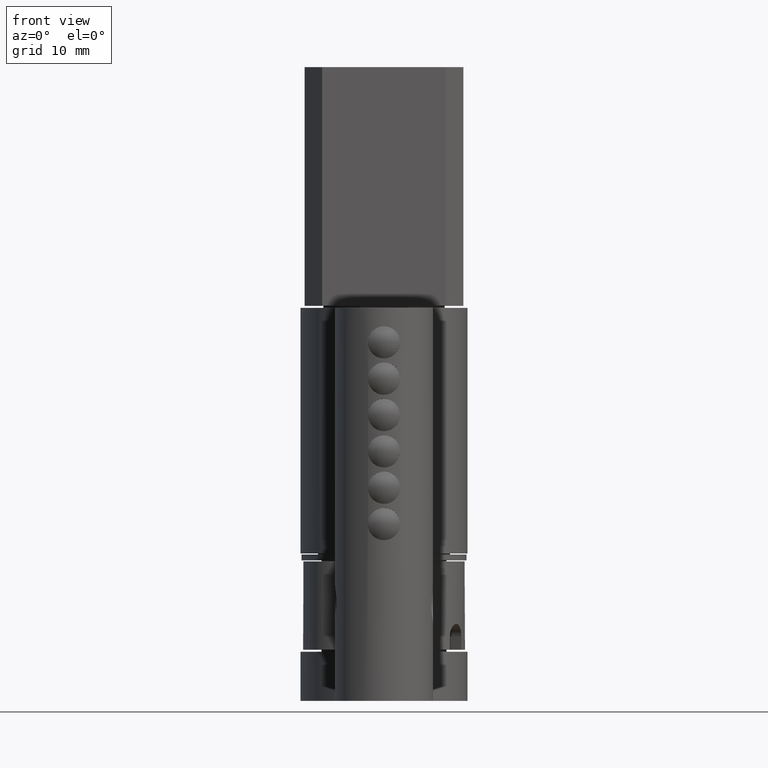
[diagram: clean part render]
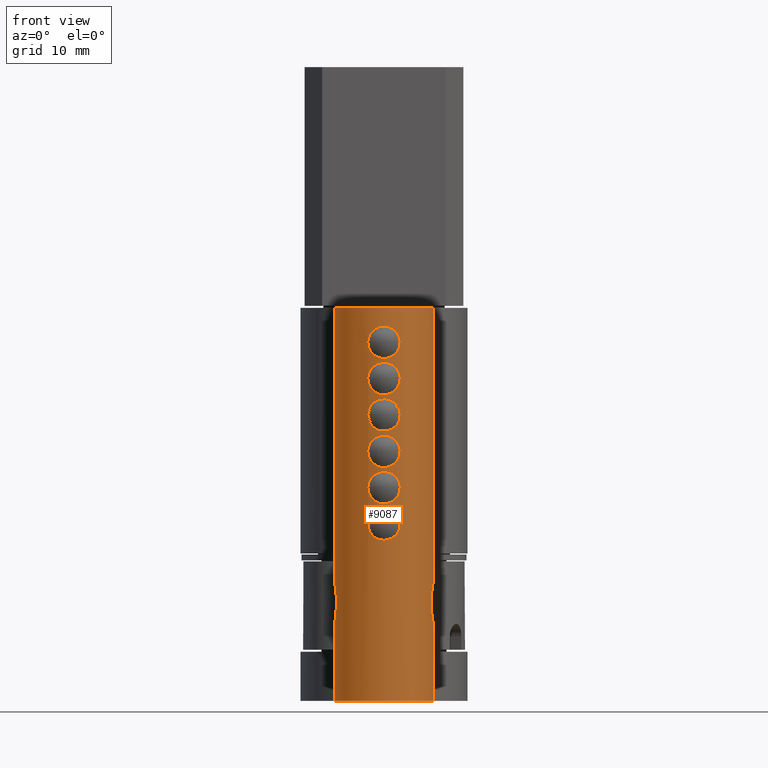
[diagram: same view with one face highlighted and labeled with its STEP entity id]
A machine part, front view. The second image highlights one B-rep face of the part: STEP entity #9087.
In plain terms, the highlighted cylindrical surface (partial cylindrical patch) has radius 5 mm, axis along (-0, -0, -1).
Its self-contained STEP definition (entity closure, byte-faithful):
#12 = CARTESIAN_POINT ( 'NONE',  ( 1.091621973882715500, 0.1200010070992013800, -3.241881492457313800 ) ) ;
#21 = EDGE_CURVE ( 'NONE', #3419, #1708, #11542, .T. ) ;
#35 = CARTESIAN_POINT ( 'NONE',  ( -1.007227762895522000, 0.1016609319739776000, 15.18869716826069400 ) ) ;
#57 = CARTESIAN_POINT ( 'NONE',  ( -0.1098355362201460500, -1.270549420881446700E-018, 7.449999999999996600 ) ) ;
#61 = CARTESIAN_POINT ( 'NONE',  ( 1.650074932156973200, 0.2801215349719762800, -1.892673292858079600 ) ) ;
#90 = CARTESIAN_POINT ( 'NONE',  ( -1.649988530627761700, 0.2800913304445955000, 16.60891810901854600 ) ) ;
#100 = CARTESIAN_POINT ( 'NONE',  ( 0.2182625013236346400, 0.003620420187726733500, 14.43912193469279600 ) ) ;
#106 = LINE ( 'NONE', #235, #13661 ) ;
#122 = CARTESIAN_POINT ( 'NONE',  ( 0.1088678505179345000, 1.447901440408486200E-005, -0.3500438758044245900 ) ) ;
#129 = VERTEX_POINT ( 'NONE', #2317 ) ;
#135 = CARTESIAN_POINT ( 'NONE',  ( 1.008203967324000400, 0.1018633726616975800, 10.41054823548679800 ) ) ;
#142 = CARTESIAN_POINT ( 'NONE',  ( 1.090686540736550900, 0.1197843866927484300, 2.942754997509563700 ) ) ;
#157 = CARTESIAN_POINT ( 'NONE',  ( -0.8288368090471287500, 0.06834075227554582700, 11.36924760114000500 ) ) ;
#160 = DIRECTION ( 'NONE',  ( -0.0000000000000000000, -0.0000000000000000000, -1.000000000000000000 ) ) ;
#186 = CARTESIAN_POINT ( 'NONE',  ( -1.090348691565175200, 0.1197049480819745000, 10.34307996601149100 ) ) ;
#193 = CARTESIAN_POINT ( 'NONE',  ( 0.1088678505179354900, 1.447901440407150400E-005, 3.349956124195575300 ) ) ;
#233 = CARTESIAN_POINT ( 'NONE',  ( 1.639256747681840700, 0.2762994924646670600, 8.882812243714482700 ) ) ;
#235 = CARTESIAN_POINT ( 'NONE',  ( -5.000000000000002700, 5.000000000000000000, 20.00000000000000000 ) ) ;
#237 = CARTESIAN_POINT ( 'NONE',  ( -5.000000000000002700, 5.000000000000000000, -20.00000000000000000 ) ) ;
#247 = CARTESIAN_POINT ( 'NONE',  ( 4.810345156952873700, 3.635557302054474200, -10.56187221587277100 ) ) ;
#277 = CARTESIAN_POINT ( 'NONE',  ( -1.596450199548909800, 0.2616615220276707300, 9.530705474130890300 ) ) ;
#285 = CARTESIAN_POINT ( 'NONE',  ( -0.8288368090471302000, 0.06834075227554585500, 0.2692476011400030100 ) ) ;
#342 = CARTESIAN_POINT ( 'NONE',  ( -1.564747389625166900, 0.2509528514736655800, 1.165543349862295800 ) ) ;
#354 = CARTESIAN_POINT ( 'NONE',  ( 4.875555561427368900, 3.889583975799378600, -8.806118562676722700 ) ) ;
#372 = CARTESIAN_POINT ( 'NONE',  ( -1.649988530627764000, 0.2800913304445966600, -1.891081890981457500 ) ) ;
#392 = CARTESIAN_POINT ( 'NONE',  ( 4.902649206668922200, 4.016070320915837000, -11.39244249719399300 ) ) ;
#407 = CARTESIAN_POINT ( 'NONE',  ( -1.565048404927423100, 0.2510481013306212800, -1.466218731627303200 ) ) ;
#531 = CARTESIAN_POINT ( 'NONE',  ( -0.7344766680267723600, 0.05321807587359096000, 3.918542652903086200 ) ) ;
#557 = B_SPLINE_CURVE_WITH_KNOTS ( 'NONE', 3,
 ( #10888, #5679, #13140, #5720, #8920, #11070, #1297, #3606, #392, #6678, #13196, #247, #6726, #8786, #8881, #7775, #7872, #3524, #12070, #6765, #354, #2498, #9945, #11028, #1793, #622, #3884, #7172 ),
 .UNSPECIFIED., .F., .F.,
 ( 4, 2, 2, 2, 2, 2, 2, 2, 2, 2, 2, 2, 2, 4 ),
 ( 0.0000000000000000000, 0.06250000000000019400, 0.1250000000000003900, 0.1875000000000005800, 0.2500000000000007800, 0.3750000000000014400, 0.4375000000000013300, 0.5000000000000012200, 0.6250000000000010000, 0.6875000000000008900, 0.7500000000000007800, 0.8750000000000001100, 0.9375000000000001100, 1.000000000000000000 ),
 .UNSPECIFIED. ) ;
#574 = CARTESIAN_POINT ( 'NONE',  ( 0.1088678505179366000, 1.447901440490442700E-005, 7.049956124195575500 ) ) ;
#586 = EDGE_CURVE ( 'NONE', #12808, #1708, #7542, .T. ) ;
#622 = CARTESIAN_POINT ( 'NONE',  ( 4.996420847617796000, 4.785816068972994100, -7.877367606260540000 ) ) ;
#630 = CARTESIAN_POINT ( 'NONE',  ( 0.5348553078930641200, 0.02767232543206412200, 3.835357254276535500 ) ) ;
#654 = ORIENTED_EDGE ( 'NONE', *, *, #21, .T. ) ;
#713 = CARTESIAN_POINT ( 'NONE',  ( 1.639176276003941400, 0.2762721595951963500, 5.617526304324264300 ) ) ;
#811 = CARTESIAN_POINT ( 'NONE',  ( 0.1098355362201435000, 0.0000000000000000000, 14.85000000000000300 ) ) ;
#885 = ORIENTED_EDGE ( 'NONE', *, *, #3923, .F. ) ;
#900 = CARTESIAN_POINT ( 'NONE',  ( 5.000000000000002700, 5.000000000000000000, -20.00000000000000000 ) ) ;
#912 = CARTESIAN_POINT ( 'NONE',  ( 1.565301919777040400, 0.2511317861460923800, 13.33305236176614500 ) ) ;
#958 = CARTESIAN_POINT ( 'NONE',  ( -2.710505431213761100E-015, 1.388192885777910200E-018, 11.15000000000000000 ) ) ;
#1030 = CARTESIAN_POINT ( 'NONE',  ( -2.974779710757102800E-015, -6.352747104407335400E-019, 7.449999999999998400 ) ) ;
#1039 = CARTESIAN_POINT ( 'NONE',  ( 5.000000000000002700, 5.000000000000000000, 20.00000000000000000 ) ) ;
#1049 = DIRECTION ( 'NONE',  ( 0.0000000000000000000, 0.0000000000000000000, 1.000000000000000000 ) ) ;
#1109 = CARTESIAN_POINT ( 'NONE',  ( -0.5350325930853473400, 0.02769193381224062700, 7.535419554168114200 ) ) ;
#1116 = CARTESIAN_POINT ( 'NONE',  ( 1.649924272086370300, 0.2800688667366772500, -2.109618429924121900 ) ) ;
#1147 = CARTESIAN_POINT ( 'NONE',  ( -0.1098355362201490100, 1.270549420881461900E-018, 11.15000000000000400 ) ) ;
#1166 = CARTESIAN_POINT ( 'NONE',  ( 1.564448142781998500, 0.2508549072477098100, -2.535278221980633800 ) ) ;
#1190 = DIRECTION ( 'NONE',  ( 0.0000000000000000000, 0.0000000000000000000, 1.000000000000000000 ) ) ;
#1200 = CARTESIAN_POINT ( 'NONE',  ( -0.8294594978670393200, 0.06844674825695269700, 14.23038720112003100 ) ) ;
#1212 = CARTESIAN_POINT ( 'NONE',  ( -2.974779710757102800E-015, -6.352747104407335400E-019, 7.449999999999998400 ) ) ;
#1216 = CARTESIAN_POINT ( 'NONE',  ( 1.565301919777036800, 0.2511317861460909400, -1.466947638233848700 ) ) ;
#1224 = CARTESIAN_POINT ( 'NONE',  ( -1.649988530627762900, 0.2800913304445953300, 9.208918109018547700 ) ) ;
#1228 = CARTESIAN_POINT ( 'NONE',  ( 0.2182625013236318700, 0.003620420187726417800, 3.339121934692796900 ) ) ;
#1232 = B_SPLINE_CURVE_WITH_KNOTS ( 'NONE', 3,
 ( #13433, #4955, #9116, #11403, #630, #12367, #7002, #2827, #4863, #10274, #8053, #3850, #5951, #12410, #12449, #1625, #713, #9213, #8093, #10197, #4823, #13535, #11360, #2866, #3805, #1712, #9172, #8188, #574, #3753, #8140, #6004, #2773, #10233, #11311, #4905, #13479, #1751, #3887, #6051, #6953, #1800, #1675, #7129, #9254, #10328, #3930, #5869, #13348, #2689, #531, #2727, #8018, #10152, #11222, #12316 ),
 .UNSPECIFIED., .T., .F.,
 ( 4, 2, 2, 2, 2, 2, 2, 2, 2, 2, 2, 2, 2, 2, 2, 2, 2, 2, 2, 2, 2, 2, 2, 2, 2, 2, 2, 4 ),
 ( 0.0000000000000000000, 0.0003246662408440515600, 0.0006493324816881031100, 0.0009739987225321547700, 0.001298664963376206200, 0.001947997445064311700, 0.002272663685908363400, 0.002597329926752415000, 0.002921996167596466700, 0.003246662408440517900, 0.003895994890128623400, 0.004220661130972677700, 0.004545327371816731100, 0.004869993612660784500, 0.005194659853504837900, 0.005843992335192946400, 0.006168658576036999800, 0.006493324816881053200, 0.007142657298569158300, 0.007467323539413209100, 0.007791989780257259900, 0.008116656021101313300, 0.008441322261945364100, 0.009090654743633465700, 0.009415320984477518200, 0.009739987225321570700, 0.01006465346616562300, 0.01038931970700967600 ),
 .UNSPECIFIED. ) ;
#1243 = CARTESIAN_POINT ( 'NONE',  ( 0.8299907424451421500, 0.06853642137993093400, 14.23007946797399000 ) ) ;
#1269 = EDGE_CURVE ( 'NONE', #1605, #3419, #2524, .T. ) ;
#1276 = CARTESIAN_POINT ( 'NONE',  ( -1.318936890373211700, 0.1745502042704533400, 10.11456284359348800 ) ) ;
#1297 = CARTESIAN_POINT ( 'NONE',  ( 4.941861884265828000, 4.235866886016523800, -11.66418053715917400 ) ) ;
#1300 = CARTESIAN_POINT ( 'NONE',  ( 0.1088678505179397800, 1.447901440493856700E-005, 14.44995612419557100 ) ) ;
#1329 = CARTESIAN_POINT ( 'NONE',  ( 1.090686540736553100, 0.1197843866927483200, 10.34275499750955700 ) ) ;
#1335 = DIRECTION ( 'NONE',  ( -0.0000000000000000000, -0.0000000000000000000, -1.000000000000000000 ) ) ;
#1338 = CARTESIAN_POINT ( 'NONE',  ( 0.8288422500476654300, 0.06833795511982887500, 0.2692321090903262400 ) ) ;
#1345 = CARTESIAN_POINT ( 'NONE',  ( -2.818925648462311500E-015, 0.0000000000000000000, -3.650000000000000400 ) ) ;
#1370 = CARTESIAN_POINT ( 'NONE',  ( -1.091479703988459600, 0.1199675293744176000, -3.242018534619019600 ) ) ;
#1384 = CARTESIAN_POINT ( 'NONE',  ( 1.650074932156973700, 0.2801215349719773400, 1.807326707141919200 ) ) ;
#1423 = CARTESIAN_POINT ( 'NONE',  ( 1.649924272086369600, 0.2800688667366781900, 1.590381570075876500 ) ) ;
#1455 = CARTESIAN_POINT ( 'NONE',  ( -1.639377002387362600, 0.2763416565669774000, -2.216232406311964300 ) ) ;
#1558 = ORIENTED_EDGE ( 'NONE', *, *, #5480, .T. ) ;
#1588 = EDGE_CURVE ( 'NONE', #12808, #13588, #557, .T. ) ;
#1605 = VERTEX_POINT ( 'NONE', #4901 ) ;
#1625 = CARTESIAN_POINT ( 'NONE',  ( 1.650074932156973700, 0.2801215349719775000, 5.507326707141917400 ) ) ;
#1675 = CARTESIAN_POINT ( 'NONE',  ( -1.639377002387362200, 0.2763416565669772300, 5.183767593688036100 ) ) ;
#1705 = CARTESIAN_POINT ( 'NONE',  ( -4.847990087421261600, 3.776395032320928100, -10.41328457518212900 ) ) ;
#1708 = VERTEX_POINT ( 'NONE', #900 ) ;
#1712 = CARTESIAN_POINT ( 'NONE',  ( 0.5347578009618484400, 0.02767013905915844500, 6.964644688810746900 ) ) ;
#1751 = CARTESIAN_POINT ( 'NONE',  ( -1.565048404927422000, 0.2510481013306209400, 5.933781268372698900 ) ) ;
#1793 = CARTESIAN_POINT ( 'NONE',  ( 4.983782024809693600, 4.585255775201479100, -8.017752466960672600 ) ) ;
#1800 = CARTESIAN_POINT ( 'NONE',  ( -1.650011451046699400, 0.2800993430409798900, 5.291429667541697400 ) ) ;
#1979 = CARTESIAN_POINT ( 'NONE',  ( 1.090686540736554700, 0.1197843866927495900, 14.04275499750956300 ) ) ;
#2019 = CARTESIAN_POINT ( 'NONE',  ( 1.007627981561622500, 0.1017395076262229300, 11.48898433117820900 ) ) ;
#2057 = B_SPLINE_CURVE_WITH_KNOTS ( 'NONE', 3,
 ( #8399, #811, #11571, #13747, #3039, #10506, #7349, #12621, #10416, #4018, #9478, #10547, #5219, #12579, #6187, #4155, #12715, #13577, #7176, #9306, #2905, #10373, #3980, #5039, #12542, #6142, #13614, #5410, #2101, #11754, #10734, #8636, #3183, #4292, #6422, #2198, #13880, #5362, #9525, #7480, #90, #12849, #2151, #6472, #4242, #11668, #4342, #9658, #35, #7533, #3276, #3229, #8544, #12896, #4197, #11805 ),
 .UNSPECIFIED., .T., .F.,
 ( 4, 2, 2, 2, 2, 2, 2, 2, 2, 2, 2, 2, 2, 2, 2, 2, 2, 2, 2, 2, 2, 2, 2, 2, 2, 2, 2, 4 ),
 ( 0.0000000000000000000, 0.0003246662408440538900, 0.0006493324816881077700, 0.0009739987225321616000, 0.001298664963376215500, 0.001947997445064319100, 0.002272663685908371200, 0.002597329926752422900, 0.002921996167596474500, 0.003246662408440526200, 0.003895994890128629500, 0.004220661130972678600, 0.004545327371816726800, 0.004869993612660775000, 0.005194659853504823100, 0.005843992335192918700, 0.006168658576036969500, 0.006493324816881020300, 0.007142657298569121000, 0.007467323539413171800, 0.007791989780257220800, 0.008116656021101271600, 0.008441322261945322400, 0.009090654743633432700, 0.009415320984477490400, 0.009739987225321548200, 0.01006465346616560400, 0.01038931970700966200 ),
 .UNSPECIFIED. ) ;
#2085 = CARTESIAN_POINT ( 'NONE',  ( 0.8288422500476647600, 0.06833795511982891600, 7.669232109090324400 ) ) ;
#2090 = CARTESIAN_POINT ( 'NONE',  ( 0.5348553078930635700, 0.02767232543206431300, 0.1353572542765338100 ) ) ;
#2101 = CARTESIAN_POINT ( 'NONE',  ( 0.1088678505179400700, 1.447901440490031200E-005, 18.14995612419556900 ) ) ;
#2126 = CARTESIAN_POINT ( 'NONE',  ( 1.639176276003940100, 0.2762721595951956900, -1.782473695675734500 ) ) ;
#2151 = CARTESIAN_POINT ( 'NONE',  ( -1.639377002387360400, 0.2763416565669761200, 16.28376759368804400 ) ) ;
#2177 = CARTESIAN_POINT ( 'NONE',  ( -0.7344766680267734700, 0.05321807587359116100, 7.618542652903088600 ) ) ;
#2198 = CARTESIAN_POINT ( 'NONE',  ( -1.318936890373207500, 0.1745502042704512900, 17.51456284359348500 ) ) ;
#2208 = CARTESIAN_POINT ( 'NONE',  ( -0.2157346272952234400, -2.882455228084988800E-005, 14.45008734713448100 ) ) ;
#2258 = CARTESIAN_POINT ( 'NONE',  ( -1.639377002387360800, 0.2763416565669767300, 12.58376759368803900 ) ) ;
#2289 = CARTESIAN_POINT ( 'NONE',  ( -1.639377002387362200, 0.2763416565669772900, 8.883767593688038000 ) ) ;
#2298 = CARTESIAN_POINT ( 'NONE',  ( -1.007707363604455100, 0.1017608875518722000, 3.010929621706361900 ) ) ;
#2313 = CARTESIAN_POINT ( 'NONE',  ( -1.650011451046699200, 0.2800993430409785000, 12.69142966754170300 ) ) ;
#2317 = CARTESIAN_POINT ( 'NONE',  ( -5.000000000000002700, 5.000000000000000000, -7.916749309423144300 ) ) ;
#2340 = CARTESIAN_POINT ( 'NONE',  ( -1.564747389625167600, 0.2509528514736654200, 8.565543349862300800 ) ) ;
#2347 = CARTESIAN_POINT ( 'NONE',  ( 1.565301919777038400, 0.2511317861460914400, 2.233052361766149300 ) ) ;
#2376 = CARTESIAN_POINT ( 'NONE',  ( -1.007227762895521700, 0.1016609319739767800, -3.311302831739314700 ) ) ;
#2380 = VERTEX_POINT ( 'NONE', #3175 ) ;
#2387 = CARTESIAN_POINT ( 'NONE',  ( -0.4342168362335594400, 0.01484655982269268900, 10.70638104697103700 ) ) ;
#2391 = CARTESIAN_POINT ( 'NONE',  ( 1.596555122176873200, 0.2616964099415495800, 1.269482929314563100 ) ) ;
#2430 = CARTESIAN_POINT ( 'NONE',  ( 1.091621973882715300, 0.1200010070992018300, 0.4581185075426857900 ) ) ;
#2443 = EDGE_CURVE ( 'NONE', #4793, #4793, #11510, .T. ) ;
#2469 = CARTESIAN_POINT ( 'NONE',  ( -1.440749348093746300, 0.2112867944481308900, -2.832498968664956900 ) ) ;
#2485 = CARTESIAN_POINT ( 'NONE',  ( -1.439823138735753200, 0.2109925964010945000, 2.534628742667457000 ) ) ;
#2498 = CARTESIAN_POINT ( 'NONE',  ( 4.915652671846959100, 4.076624709432105800, -8.512100751001304000 ) ) ;
#2524 = LINE ( 'NONE', #4774, #9862 ) ;
#2689 = CARTESIAN_POINT ( 'NONE',  ( -0.8288368090471295300, 0.06834075227554560500, 3.969247601140003700 ) ) ;
#2727 = CARTESIAN_POINT ( 'NONE',  ( -0.5350325930853457900, 0.02769193381224046400, 3.835419554168112600 ) ) ;
#2773 = CARTESIAN_POINT ( 'NONE',  ( -0.8294594978670446500, 0.06844674825695380700, 6.830387201120025500 ) ) ;
#2827 = CARTESIAN_POINT ( 'NONE',  ( 1.007627981561622900, 0.1017395076262231600, 4.088984331178210100 ) ) ;
#2857 = CARTESIAN_POINT ( 'NONE',  ( -5.000000000000005300, 4.615107718840552500, -8.138187031066985700 ) ) ;
#2866 = CARTESIAN_POINT ( 'NONE',  ( 0.8299907424451372600, 0.06853642137992990700, 6.830079467973993300 ) ) ;
#2905 = CARTESIAN_POINT ( 'NONE',  ( 1.318555841879641900, 0.1744620256502037200, 17.51491819757088200 ) ) ;
#2974 = CIRCLE ( 'NONE', #12867, 5.000000000000002700 ) ;
#3037 = AXIS2_PLACEMENT_3D ( 'NONE', #3435, #6542, #5430 ) ;
#3039 = CARTESIAN_POINT ( 'NONE',  ( 0.5348553078930639000, 0.02767232543206428800, 14.93535725427653600 ) ) ;
#3093 = CARTESIAN_POINT ( 'NONE',  ( 1.596710054480432000, 0.2617492071492583700, 13.22980642015704300 ) ) ;
#3144 = CARTESIAN_POINT ( 'NONE',  ( 1.639176276003941700, 0.2762721595951957400, 13.01752630432426000 ) ) ;
#3175 = CARTESIAN_POINT ( 'NONE',  ( -5.000000000000002700, 5.000000000000000000, 20.00000000000000000 ) ) ;
#3183 = CARTESIAN_POINT ( 'NONE',  ( -0.8294594978670387600, 0.06844674825695314100, 17.93038720112003000 ) ) ;
#3191 = CARTESIAN_POINT ( 'NONE',  ( 0.7343526686366274000, 0.05319912855572678200, 11.31847940271060800 ) ) ;
#3229 = CARTESIAN_POINT ( 'NONE',  ( -0.5350325930853470100, 0.02769193381224076600, 14.93541955416811200 ) ) ;
#3250 = CARTESIAN_POINT ( 'NONE',  ( 1.318555841879636800, 0.1744620256502012700, -0.9850818024291203600 ) ) ;
#3276 = CARTESIAN_POINT ( 'NONE',  ( -0.7344766680267729200, 0.05321807587359122400, 15.01854265290308600 ) ) ;
#3283 = CARTESIAN_POINT ( 'NONE',  ( -0.5350325930853452300, 0.02769193381224101200, 11.23541955416811800 ) ) ;
#3298 = EDGE_CURVE ( 'NONE', #2380, #9400, #2974, .T. ) ;
#3305 = CARTESIAN_POINT ( 'NONE',  ( 1.639256747681840300, 0.2762994924646665600, -2.217187756285512000 ) ) ;
#3343 = CARTESIAN_POINT ( 'NONE',  ( -1.318282798373261700, 0.1744109273760071900, 11.78492246516002100 ) ) ;
#3356 = CARTESIAN_POINT ( 'NONE',  ( 0.7334418086693814700, 0.05307234083726414900, -0.5180613976250497700 ) ) ;
#3366 = CARTESIAN_POINT ( 'NONE',  ( 0.7334418086693860200, 0.05307234083726531500, 10.58193860237495300 ) ) ;
#3370 = CARTESIAN_POINT ( 'NONE',  ( -1.650011451046700100, 0.2800993430409798900, 1.591429667541695200 ) ) ;
#3385 = CARTESIAN_POINT ( 'NONE',  ( 0.7334418086693866900, 0.05307234083726540500, 14.28193860237495400 ) ) ;
#3401 = CARTESIAN_POINT ( 'NONE',  ( 0.7343526686366284000, 0.05319912855572687300, -3.481520597289391000 ) ) ;
#3411 = CARTESIAN_POINT ( 'NONE',  ( 0.1088678505179384000, 1.447901440484535700E-005, 10.74995612419557600 ) ) ;
#3416 = CARTESIAN_POINT ( 'NONE',  ( 1.440119107417346500, 0.2110821048080516700, 2.534156243290182500 ) ) ;
#3419 = VERTEX_POINT ( 'NONE', #237 ) ;
#3435 = CARTESIAN_POINT ( 'NONE',  ( -2.818925648462311500E-015, 4.999999999999999100, 20.00000000000000000 ) ) ;
#3455 = CARTESIAN_POINT ( 'NONE',  ( 1.440119107417347400, 0.2110821048080524000, 9.934156243290187800 ) ) ;
#3462 = CARTESIAN_POINT ( 'NONE',  ( -0.2177597503544256900, 0.003614935792076520800, 0.06086415663724822900 ) ) ;
#3498 = CARTESIAN_POINT ( 'NONE',  ( -1.318936890373213300, 0.1745502042704537300, -0.9854371564065166300 ) ) ;
#3524 = CARTESIAN_POINT ( 'NONE',  ( 4.828009089172987900, 3.699443201864563300, -9.222393706855413600 ) ) ;
#3540 = CARTESIAN_POINT ( 'NONE',  ( -1.007707363604456200, 0.1017608875518726700, -0.6890703782936378200 ) ) ;
#3552 = CARTESIAN_POINT ( 'NONE',  ( 1.564448142781999600, 0.2508549072477102000, 1.164721778019364800 ) ) ;
#3606 = CARTESIAN_POINT ( 'NONE',  ( 4.916061798234333800, 4.084448420357166000, -11.48513290920858900 ) ) ;
#3753 = CARTESIAN_POINT ( 'NONE',  ( -0.2157346272952258000, -2.882455228068828400E-005, 7.050087347134478000 ) ) ;
#3793 = CARTESIAN_POINT ( 'NONE',  ( -4.840695979654275200, 3.747850073983687700, -10.20857877746924200 ) ) ;
#3805 = CARTESIAN_POINT ( 'NONE',  ( 0.7334418086693833500, 0.05307234083726435100, 6.881938602374948900 ) ) ;
#3850 = CARTESIAN_POINT ( 'NONE',  ( 1.564448142781999000, 0.2508549072477099200, 4.864721778019364800 ) ) ;
#3884 = CARTESIAN_POINT ( 'NONE',  ( 4.999999999999998200, 4.890697894200006800, -7.813490803979134600 ) ) ;
#3887 = CARTESIAN_POINT ( 'NONE',  ( -1.596450199548911100, 0.2616615220276712300, 5.830705474130883000 ) ) ;
#3923 = EDGE_CURVE ( 'NONE', #12663, #12663, #4037, .T. ) ;
#3930 = CARTESIAN_POINT ( 'NONE',  ( -1.318282798373263500, 0.1744109273760078000, 4.384922465160017600 ) ) ;
#3980 = CARTESIAN_POINT ( 'NONE',  ( 1.008203967324001300, 0.1018633726616976800, 17.81054823548679200 ) ) ;
#4018 = CARTESIAN_POINT ( 'NONE',  ( 1.318121357566448100, 0.1743735220147118700, 15.48477155900082600 ) ) ;
#4030 = ORIENTED_EDGE ( 'NONE', *, *, #3298, .F. ) ;
#4037 = B_SPLINE_CURVE_WITH_KNOTS ( 'NONE', 3,
 ( #12972, #6595, #8714, #4321, #5387, #3401, #6501, #6447, #12, #13029, #7713, #1166, #11933, #3305, #1116, #61, #2126, #7507, #1216, #7556, #3250, #10759, #4364, #11834, #3356, #5440, #12919, #6547, #122, #7602, #9722, #5648, #7931, #3540, #8859, #3498, #7793, #407, #12182, #4563, #372, #8941, #1455, #11091, #5738, #2469, #6745, #1370, #2376, #10949, #12130, #7889, #8897, #9969, #11990, #12045 ),
 .UNSPECIFIED., .T., .F.,
 ( 4, 2, 2, 2, 2, 2, 2, 2, 2, 2, 2, 2, 2, 2, 2, 2, 2, 2, 2, 2, 2, 2, 2, 2, 2, 2, 2, 4 ),
 ( 0.0000000000000000000, 0.0003246662408440523100, 0.0006493324816881046300, 0.0009739987225321570500, 0.001298664963376209000, 0.001947997445064313700, 0.002272663685908365500, 0.002597329926752418100, 0.002921996167596470600, 0.003246662408440522300, 0.003895994890128628200, 0.004220661130972680300, 0.004545327371816732800, 0.004869993612660785400, 0.005194659853504837900, 0.005843992335192943000, 0.006168658576036994600, 0.006493324816881047200, 0.007142657298569153100, 0.007467323539413205600, 0.007791989780257257300, 0.008116656021101309800, 0.008441322261945362300, 0.009090654743633469100, 0.009415320984477521700, 0.009739987225321574200, 0.01006465346616562800, 0.01038931970700968100 ),
 .UNSPECIFIED. ) ;
#4155 = CARTESIAN_POINT ( 'NONE',  ( 1.650074932156973900, 0.2801215349719775000, 16.60732670714190800 ) ) ;
#4182 = EDGE_CURVE ( 'NONE', #10473, #10473, #8573, .T. ) ;
#4197 = CARTESIAN_POINT ( 'NONE',  ( -0.1098355362201504200, 6.352747104407327700E-019, 14.85000000000000000 ) ) ;
#4242 = CARTESIAN_POINT ( 'NONE',  ( -1.564747389625165600, 0.2509528514736650300, 15.96554334986229800 ) ) ;
#4250 = CARTESIAN_POINT ( 'NONE',  ( 1.639256747681841200, 0.2762994924646670600, 12.58281224371448700 ) ) ;
#4292 = CARTESIAN_POINT ( 'NONE',  ( -1.007707363604451300, 0.1017608875518717800, 17.81092962170637200 ) ) ;
#4321 = CARTESIAN_POINT ( 'NONE',  ( 0.4296339622040287700, 0.01736092247163208800, -3.596744917678951700 ) ) ;
#4342 = CARTESIAN_POINT ( 'NONE',  ( -1.318282798373261200, 0.1744109273760077500, 15.48492246516002700 ) ) ;
#4349 = CARTESIAN_POINT ( 'NONE',  ( -0.2177597503544258000, 0.003614935792076432800, 11.16086415663725300 ) ) ;
#4364 = CARTESIAN_POINT ( 'NONE',  ( 1.008203967323997500, 0.1018633726616975800, -0.6894517645132017800 ) ) ;
#4423 = CARTESIAN_POINT ( 'NONE',  ( -0.2157346272952247500, -2.882455228083886700E-005, 10.75008734713448400 ) ) ;
#4428 = CARTESIAN_POINT ( 'NONE',  ( 1.318555841879637300, 0.1744620256502021300, 2.714918197570880900 ) ) ;
#4446 = CARTESIAN_POINT ( 'NONE',  ( -1.565048404927420700, 0.2510481013306207200, 13.33378126837269800 ) ) ;
#4464 = LINE ( 'NONE', #11818, #10144 ) ;
#4482 = CARTESIAN_POINT ( 'NONE',  ( -1.318282798373265500, 0.1744109273760088800, 8.084922465160021300 ) ) ;
#4492 = CARTESIAN_POINT ( 'NONE',  ( 1.639176276003941200, 0.2762721595951964100, 1.917526304324264500 ) ) ;
#4533 = CARTESIAN_POINT ( 'NONE',  ( 1.596555122176873700, 0.2616964099415500800, 8.669482929314563400 ) ) ;
#4539 = CARTESIAN_POINT ( 'NONE',  ( 1.007627981561623600, 0.1017395076262230500, 0.3889843311782110700 ) ) ;
#4563 = CARTESIAN_POINT ( 'NONE',  ( -1.638967601010439000, 0.2761996259038456700, -1.781035053206781800 ) ) ;
#4572 = CARTESIAN_POINT ( 'NONE',  ( 1.008203967323999100, 0.1018633726616971900, 3.010548235486796700 ) ) ;
#4617 = CARTESIAN_POINT ( 'NONE',  ( -0.7344766680267721400, 0.05321807587359100900, 0.2185426529030856100 ) ) ;
#4774 = CARTESIAN_POINT ( 'NONE',  ( -5.000000000000002700, 5.000000000000000000, 20.00000000000000000 ) ) ;
#4793 = VERTEX_POINT ( 'NONE', #6530 ) ;
#4812 = CARTESIAN_POINT ( 'NONE',  ( -4.873950748808798700, 3.882849423961722800, -10.81612768231493100 ) ) ;
#4823 = CARTESIAN_POINT ( 'NONE',  ( 1.318555841879637700, 0.1744620256502023000, 6.414918197570879800 ) ) ;
#4857 = CARTESIAN_POINT ( 'NONE',  ( -4.893485412084420900, 3.967441344839498300, -11.00978255570573900 ) ) ;
#4863 = CARTESIAN_POINT ( 'NONE',  ( 1.091621973882715500, 0.1200010070992013300, 4.158118507542682500 ) ) ;
#4897 = CARTESIAN_POINT ( 'NONE',  ( -5.000000000000002700, 5.000000000000000000, -7.916749309423144300 ) ) ;
#4901 = CARTESIAN_POINT ( 'NONE',  ( -5.000000000000002700, 5.000000000000000000, -12.08325069057685200 ) ) ;
#4905 = CARTESIAN_POINT ( 'NONE',  ( -1.318936890373211000, 0.1745502042704530400, 6.414562843593484900 ) ) ;
#4955 = CARTESIAN_POINT ( 'NONE',  ( 0.1098355362201438200, 0.0000000000000000000, 3.750000000000000900 ) ) ;
#5039 = CARTESIAN_POINT ( 'NONE',  ( 0.8299907424451388200, 0.06853642137993036500, 17.93007946797398600 ) ) ;
#5196 = EDGE_CURVE ( 'NONE', #5820, #5820, #7566, .T. ) ;
#5219 = CARTESIAN_POINT ( 'NONE',  ( 1.596555122176873000, 0.2616964099415497500, 16.06948292931457400 ) ) ;
#5313 = CARTESIAN_POINT ( 'NONE',  ( 0.7343526686366281800, 0.05319912855572684500, 0.2184794027106089800 ) ) ;
#5362 = CARTESIAN_POINT ( 'NONE',  ( -1.565048404927418900, 0.2510481013306202800, 17.03378126837269900 ) ) ;
#5387 = CARTESIAN_POINT ( 'NONE',  ( 0.5348553078930639000, 0.02767232543206432600, -3.564642745723465700 ) ) ;
#5403 = CARTESIAN_POINT ( 'NONE',  ( 0.1098355362201437100, 1.505836350674302700E-018, 0.04999999999999949600 ) ) ;
#5410 = CARTESIAN_POINT ( 'NONE',  ( 0.2182625013236349500, 0.003620420187726749600, 18.13912193469278500 ) ) ;
#5430 = DIRECTION ( 'NONE',  ( -1.000000000000000000, 0.0000000000000000000, 0.0000000000000000000 ) ) ;
#5440 = CARTESIAN_POINT ( 'NONE',  ( 0.5347578009618465500, 0.02767013905915829600, -0.4353553111892511900 ) ) ;
#5475 = CARTESIAN_POINT ( 'NONE',  ( -0.4342168362335595600, 0.01484655982269220300, 14.40638104697104700 ) ) ;
#5480 = EDGE_CURVE ( 'NONE', #129, #1605, #10038, .T. ) ;
#5510 = CARTESIAN_POINT ( 'NONE',  ( 1.007627981561622900, 0.1017395076262230800, 7.788984331178213900 ) ) ;
#5516 = CARTESIAN_POINT ( 'NONE',  ( -1.596450199548912000, 0.2616615220276719000, 2.130705474130883300 ) ) ;
#5530 = CARTESIAN_POINT ( 'NONE',  ( -1.649988530627762200, 0.2800913304445952200, 12.90891810901854200 ) ) ;
#5560 = CARTESIAN_POINT ( 'NONE',  ( 1.564448142781999800, 0.2508549072477094200, 8.564721778019363200 ) ) ;
#5563 = CARTESIAN_POINT ( 'NONE',  ( 1.318121357566449200, 0.1743735220147120100, 0.6847715590008398600 ) ) ;
#5606 = CARTESIAN_POINT ( 'NONE',  ( 1.565301919777039000, 0.2511317861460920500, 9.633052361766148800 ) ) ;
#5648 = CARTESIAN_POINT ( 'NONE',  ( -0.7329107949355439000, 0.05298913105984148800, -0.5177827929412183200 ) ) ;
#5679 = CARTESIAN_POINT ( 'NONE',  ( 5.000000000000000000, 4.891497751846060300, -12.18692257364965700 ) ) ;
#5720 = CARTESIAN_POINT ( 'NONE',  ( 4.984061707453753000, 4.589020082699136100, -11.98502555787702000 ) ) ;
#5738 = CARTESIAN_POINT ( 'NONE',  ( -1.564747389625168900, 0.2509528514736658100, -2.534456650137703700 ) ) ;
#5820 = VERTEX_POINT ( 'NONE', #11810 ) ;
#5843 = EDGE_CURVE ( 'NONE', #2380, #129, #106, .T. ) ;
#5869 = CARTESIAN_POINT ( 'NONE',  ( -1.091479703988457600, 0.1199675293744175600, 4.157981465380978600 ) ) ;
#5905 = CARTESIAN_POINT ( 'NONE',  ( -5.000000000000002700, 5.000000000000000000, -12.08325069057685200 ) ) ;
#5951 = CARTESIAN_POINT ( 'NONE',  ( 1.596555122176872800, 0.2616964099415504700, 4.969482929314558800 ) ) ;
#6004 = CARTESIAN_POINT ( 'NONE',  ( -0.7329107949355420100, 0.05298913105984112700, 6.882217207058784100 ) ) ;
#6051 = CARTESIAN_POINT ( 'NONE',  ( -1.638967601010437900, 0.2761996259038451100, 5.618964946793219000 ) ) ;
#6142 = CARTESIAN_POINT ( 'NONE',  ( 0.5347578009618508800, 0.02767013905915916700, 18.06464468881074500 ) ) ;
#6187 = CARTESIAN_POINT ( 'NONE',  ( 1.649924272086369800, 0.2800688667366781300, 16.39038157007588100 ) ) ;
#6261 = ORIENTED_EDGE ( 'NONE', *, *, #2443, .F. ) ;
#6280 = CARTESIAN_POINT ( 'NONE',  ( 0.1098355362201435800, 1.505836350674358600E-018, 11.14999999999999900 ) ) ;
#6289 = FACE_BOUND ( 'NONE', #12913, .T. ) ;
#6325 = ORIENTED_EDGE ( 'NONE', *, *, #1269, .T. ) ;
#6343 = ORIENTED_EDGE ( 'NONE', *, *, #8202, .F. ) ;
#6374 = CARTESIAN_POINT ( 'NONE',  ( -2.907017074976758800E-015, 1.176434648964268000E-019, 0.04999999999999971100 ) ) ;
#6422 = CARTESIAN_POINT ( 'NONE',  ( -1.090348691565173200, 0.1197049480819732700, 17.74307996601149300 ) ) ;
#6447 = CARTESIAN_POINT ( 'NONE',  ( 1.007627981561622900, 0.1017395076262230200, -3.311015668821788400 ) ) ;
#6467 = ORIENTED_EDGE ( 'NONE', *, *, #5843, .T. ) ;
#6472 = CARTESIAN_POINT ( 'NONE',  ( -1.596846945608434900, 0.2617951781563940300, 16.07058965802272600 ) ) ;
#6484 = CARTESIAN_POINT ( 'NONE',  ( 1.650074932156974500, 0.2801215349719781100, 12.90732670714191600 ) ) ;
#6501 = CARTESIAN_POINT ( 'NONE',  ( 0.8288422500476653200, 0.06833795511982888900, -3.430767890909674800 ) ) ;
#6513 = CARTESIAN_POINT ( 'NONE',  ( 0.2176880948222495400, 0.003612363740725702500, 7.460856453209375500 ) ) ;
#6523 = DIRECTION ( 'NONE',  ( 1.000000000000000000, 0.0000000000000000000, 0.0000000000000000000 ) ) ;
#6530 = CARTESIAN_POINT ( 'NONE',  ( -2.818925648462311500E-015, 0.0000000000000000000, 0.04999999999999969700 ) ) ;
#6537 = CARTESIAN_POINT ( 'NONE',  ( -1.318936890373209300, 0.1745502042704518700, 13.81456284359349100 ) ) ;
#6542 = DIRECTION ( 'NONE',  ( -0.0000000000000000000, -0.0000000000000000000, -1.000000000000000000 ) ) ;
#6544 = CARTESIAN_POINT ( 'NONE',  ( -0.4297570286535419300, 0.01737098360340318500, 7.503286338070026300 ) ) ;
#6547 = CARTESIAN_POINT ( 'NONE',  ( 0.2182625013236299500, 0.003620420187727173300, -0.3608780653072030700 ) ) ;
#6556 = CARTESIAN_POINT ( 'NONE',  ( 1.596710054480432200, 0.2617492071492587600, 9.529806420157051100 ) ) ;
#6560 = CARTESIAN_POINT ( 'NONE',  ( 1.596710054480430700, 0.2617492071492588700, 2.129806420157051200 ) ) ;
#6578 = CARTESIAN_POINT ( 'NONE',  ( -1.596450199548909800, 0.2616615220276705100, 13.23070547413088600 ) ) ;
#6595 = CARTESIAN_POINT ( 'NONE',  ( 0.1098355362201437100, 0.0000000000000000000, -3.649999999999999900 ) ) ;
#6604 = CARTESIAN_POINT ( 'NONE',  ( 1.091621973882714900, 0.1200010070992010600, 7.858118507542685400 ) ) ;
#6609 = CARTESIAN_POINT ( 'NONE',  ( -1.639377002387362400, 0.2763416565669775700, 1.483767593688035700 ) ) ;
#6621 = CARTESIAN_POINT ( 'NONE',  ( -1.439823138735753000, 0.2109925964010939700, 13.63462874266745200 ) ) ;
#6651 = CARTESIAN_POINT ( 'NONE',  ( 1.639176276003941700, 0.2762721595951963500, 9.317526304324266200 ) ) ;
#6678 = CARTESIAN_POINT ( 'NONE',  ( 4.862510689914687500, 3.828532024081897400, -11.09843787217247900 ) ) ;
#6708 = CARTESIAN_POINT ( 'NONE',  ( -1.439823138735751000, 0.2109925964010937200, 9.934628742667463500 ) ) ;
#6713 = CARTESIAN_POINT ( 'NONE',  ( 0.8299907424451372600, 0.06853642137993008800, 3.130079467973993600 ) ) ;
#6721 = CARTESIAN_POINT ( 'NONE',  ( -2.818925648462311500E-015, 0.0000000000000000000, 14.85000000000000100 ) ) ;
#6726 = CARTESIAN_POINT ( 'NONE',  ( 4.803359670247295400, 3.611463883143934100, -10.45300274041446500 ) ) ;
#6745 = CARTESIAN_POINT ( 'NONE',  ( -1.318282798373263900, 0.1744109273760076600, -3.015077534839986300 ) ) ;
#6752 = CARTESIAN_POINT ( 'NONE',  ( 0.4317951788605730600, 0.01753069767992605400, 3.296218080272201900 ) ) ;
#6765 = CARTESIAN_POINT ( 'NONE',  ( 4.862631590658248000, 3.835010813735480800, -8.906564210483857400 ) ) ;
#6948 = ORIENTED_EDGE ( 'NONE', *, *, #5196, .F. ) ;
#6953 = CARTESIAN_POINT ( 'NONE',  ( -1.649988530627763700, 0.2800913304445966600, 5.508918109018547500 ) ) ;
#7002 = CARTESIAN_POINT ( 'NONE',  ( 0.8288422500476653200, 0.06833795511982902700, 3.969232109090326000 ) ) ;
#7085 = CARTESIAN_POINT ( 'NONE',  ( -4.956233474221702000, 4.321727851733468700, -11.54063089302515300 ) ) ;
#7129 = CARTESIAN_POINT ( 'NONE',  ( -1.596846945608436900, 0.2617951781563951400, 4.970589658022725600 ) ) ;
#7135 = ORIENTED_EDGE ( 'NONE', *, *, #1588, .T. ) ;
#7172 = CARTESIAN_POINT ( 'NONE',  ( 5.000000000000002700, 5.000000000000000000, -7.755929629766403500 ) ) ;
#7176 = CARTESIAN_POINT ( 'NONE',  ( 1.565301919777039300, 0.2511317861460917200, 17.03305236176616300 ) ) ;
#7279 = EDGE_LOOP ( 'NONE', ( #6261 ) ) ;
#7294 = FACE_BOUND ( 'NONE', #7279, .T. ) ;
#7349 = CARTESIAN_POINT ( 'NONE',  ( 0.8288422500476642100, 0.06833795511982869400, 15.06923210909032000 ) ) ;
#7365 = VECTOR ( 'NONE', #160, 1000.000000000000000 ) ;
#7394 = CARTESIAN_POINT ( 'NONE',  ( 1.440119107417348700, 0.2110821048080526200, 13.63415624329018200 ) ) ;
#7433 = CARTESIAN_POINT ( 'NONE',  ( -2.818925648462311500E-015, 4.999999999999999100, 20.00000000000000000 ) ) ;
#7480 = CARTESIAN_POINT ( 'NONE',  ( -1.638967601010435500, 0.2761996259038437800, 16.71896494679321800 ) ) ;
#7507 = CARTESIAN_POINT ( 'NONE',  ( 1.596710054480430000, 0.2617492071492581500, -1.570193579842947200 ) ) ;
#7533 = CARTESIAN_POINT ( 'NONE',  ( -0.8288368090471290900, 0.06834075227554570200, 15.06924760114001000 ) ) ;
#7540 = CARTESIAN_POINT ( 'NONE',  ( -1.440749348093746100, 0.2112867944481307800, 11.96750103133504700 ) ) ;
#7542 = LINE ( 'NONE', #12957, #7365 ) ;
#7556 = CARTESIAN_POINT ( 'NONE',  ( 1.440119107417343800, 0.2110821048080511700, -1.165843756709815900 ) ) ;
#7566 = B_SPLINE_CURVE_WITH_KNOTS ( 'NONE', 3,
 ( #1030, #9595, #6513, #8626, #9690, #8484, #2085, #5510, #6604, #9729, #7672, #5560, #4533, #233, #10873, #7722, #6651, #6556, #5606, #3455, #12985, #1329, #135, #13038, #3366, #13082, #8769, #10823, #3411, #4423, #2387, #9838, #11898, #10918, #186, #1276, #6708, #12003, #277, #7612, #1224, #8678, #2289, #8725, #2340, #9785, #4482, #11947, #9578, #12875, #2177, #1109, #6544, #12822, #57, #1212 ),
 .UNSPECIFIED., .T., .F.,
 ( 4, 2, 2, 2, 2, 2, 2, 2, 2, 2, 2, 2, 2, 2, 2, 2, 2, 2, 2, 2, 2, 2, 2, 2, 2, 2, 2, 4 ),
 ( 0.0000000000000000000, 0.0003246662408440561100, 0.0006493324816881122200, 0.0009739987225321684400, 0.001298664963376224200, 0.001947997445064336000, 0.002272663685908392400, 0.002597329926752448400, 0.002921996167596504900, 0.003246662408440560400, 0.003895994890128668100, 0.004220661130972721900, 0.004545327371816775300, 0.004869993612660828700, 0.005194659853504883000, 0.005843992335192991500, 0.006168658576037043200, 0.006493324816881095700, 0.007142657298569198200, 0.007467323539413245500, 0.007791989780257293700, 0.008116656021101342800, 0.008441322261945390100, 0.009090654743633483000, 0.009415320984477530300, 0.009739987225321579400, 0.01006465346616562700, 0.01038931970700967400 ),
 .UNSPECIFIED. ) ;
#7585 = CARTESIAN_POINT ( 'NONE',  ( -0.7329107949355386800, 0.05298913105984035000, 14.28221720705878400 ) ) ;
#7602 = CARTESIAN_POINT ( 'NONE',  ( -0.2157346272952286300, -2.882455228133232100E-005, -0.3499126528655207000 ) ) ;
#7612 = CARTESIAN_POINT ( 'NONE',  ( -1.638967601010437500, 0.2761996259038446100, 9.318964946793221000 ) ) ;
#7620 = CARTESIAN_POINT ( 'NONE',  ( 0.5347578009618480000, 0.02767013905915926400, 3.264644688810749000 ) ) ;
#7637 = FACE_BOUND ( 'NONE', #9739, .T. ) ;
#7672 = CARTESIAN_POINT ( 'NONE',  ( 1.440649442409527700, 0.2112592889201153900, 8.267466367280993800 ) ) ;
#7679 = CARTESIAN_POINT ( 'NONE',  ( -0.4297570286535416000, 0.01737098360340319800, 0.1032863380700282100 ) ) ;
#7713 = CARTESIAN_POINT ( 'NONE',  ( 1.440649442409528000, 0.2112592889201159500, -2.832533632719000900 ) ) ;
#7722 = CARTESIAN_POINT ( 'NONE',  ( 1.650074932156975000, 0.2801215349719778400, 9.207326707141920300 ) ) ;
#7726 = CARTESIAN_POINT ( 'NONE',  ( 1.639256747681839800, 0.2762994924646666200, 1.482812243714487100 ) ) ;
#7763 = CARTESIAN_POINT ( 'NONE',  ( -0.8294594978670454300, 0.06844674825695376600, 3.130387201120024400 ) ) ;
#7775 = CARTESIAN_POINT ( 'NONE',  ( 4.791138509430866500, 3.569967903802703900, -9.775225123236511500 ) ) ;
#7793 = CARTESIAN_POINT ( 'NONE',  ( -1.439823138735752700, 0.2109925964010945200, -1.165371257332545400 ) ) ;
#7872 = CARTESIAN_POINT ( 'NONE',  ( 4.801249485854751400, 3.602687445188919500, -9.549782778141679500 ) ) ;
#7889 = CARTESIAN_POINT ( 'NONE',  ( -0.5350325930853467900, 0.02769193381224024200, -3.564580445831885900 ) ) ;
#7931 = CARTESIAN_POINT ( 'NONE',  ( -0.8294594978670452000, 0.06844674825695411200, -0.5696127988799751800 ) ) ;
#8018 = CARTESIAN_POINT ( 'NONE',  ( -0.4297570286535404800, 0.01737098360340306300, 3.803286338070027900 ) ) ;
#8053 = CARTESIAN_POINT ( 'NONE',  ( 1.440649442409526000, 0.2112592889201155300, 4.567466367281000700 ) ) ;
#8093 = CARTESIAN_POINT ( 'NONE',  ( 1.565301919777038400, 0.2511317861460913800, 5.933052361766150400 ) ) ;
#8132 = CARTESIAN_POINT ( 'NONE',  ( -4.934569198383836200, 4.186118140642394200, -11.37117853610590000 ) ) ;
#8140 = CARTESIAN_POINT ( 'NONE',  ( -0.4342168362335612200, 0.01484655982269258800, 7.006381046971043200 ) ) ;
#8188 = CARTESIAN_POINT ( 'NONE',  ( 0.2182625013236323400, 0.003620420187726436500, 7.039121934692795800 ) ) ;
#8202 = EDGE_CURVE ( 'NONE', #9400, #13588, #4464, .T. ) ;
#8221 = CARTESIAN_POINT ( 'NONE',  ( -4.872755559642597800, 3.857216348180217700, -9.172658133134042700 ) ) ;
#8370 = CARTESIAN_POINT ( 'NONE',  ( 1.318555841879639900, 0.1744620256502034700, 13.81491819757086000 ) ) ;
#8399 = CARTESIAN_POINT ( 'NONE',  ( -2.873135757086586800E-015, 3.176373552203647000E-019, 14.85000000000000100 ) ) ;
#8408 = CARTESIAN_POINT ( 'NONE',  ( 0.8288422500476646500, 0.06833795511982884700, 11.36923210909032800 ) ) ;
#8484 = CARTESIAN_POINT ( 'NONE',  ( 0.7343526686366277400, 0.05319912855572685200, 7.618479402710608600 ) ) ;
#8491 = CARTESIAN_POINT ( 'NONE',  ( 0.4296339622040285000, 0.01736092247163206800, 0.1032550823210479800 ) ) ;
#8504 = DIRECTION ( 'NONE',  ( 1.000000000000000000, 0.0000000000000000000, 0.0000000000000000000 ) ) ;
#8544 = CARTESIAN_POINT ( 'NONE',  ( -0.4297570286535397100, 0.01737098360340194300, 14.90328633807003700 ) ) ;
#8573 = B_SPLINE_CURVE_WITH_KNOTS ( 'NONE', 3,
 ( #958, #6280, #9568, #13756, #12723, #3191, #8408, #2019, #10701, #11764, #9530, #13794, #10515, #4250, #11718, #6484, #3144, #3093, #912, #7394, #8370, #1979, #10556, #1243, #3385, #10849, #8598, #100, #1300, #2208, #5475, #7585, #1200, #9708, #9668, #6537, #6621, #4446, #6578, #11916, #5530, #2313, #2258, #8646, #11816, #7540, #3343, #9751, #13007, #157, #8696, #3283, #10793, #4349, #1147, #12951 ),
 .UNSPECIFIED., .T., .F.,
 ( 4, 2, 2, 2, 2, 2, 2, 2, 2, 2, 2, 2, 2, 2, 2, 2, 2, 2, 2, 2, 2, 2, 2, 2, 2, 2, 2, 4 ),
 ( 0.0000000000000000000, 0.0003246662408440556200, 0.0006493324816881112400, 0.0009739987225321667000, 0.001298664963376222100, 0.001947997445064328400, 0.002272663685908382000, 0.002597329926752435000, 0.002921996167596488400, 0.003246662408440541800, 0.003895994890128643400, 0.004220661130972692400, 0.004545327371816741500, 0.004869993612660791400, 0.005194659853504839600, 0.005843992335192939500, 0.006168658576036991200, 0.006493324816881041900, 0.007142657298569139200, 0.007467323539413190000, 0.007791989780257239900, 0.008116656021101290700, 0.008441322261945341500, 0.009090654743633448300, 0.009415320984477504300, 0.009739987225321560300, 0.01006465346616561600, 0.01038931970700967100 ),
 .UNSPECIFIED. ) ;
#8598 = CARTESIAN_POINT ( 'NONE',  ( 0.4317951788605759500, 0.01753069767992649100, 14.39621808027220400 ) ) ;
#8626 = CARTESIAN_POINT ( 'NONE',  ( 0.4296339622040285000, 0.01736092247163207800, 7.503255082321053300 ) ) ;
#8636 = CARTESIAN_POINT ( 'NONE',  ( -0.7329107949355391200, 0.05298913105984095300, 17.98221720705878800 ) ) ;
#8646 = CARTESIAN_POINT ( 'NONE',  ( -1.596846945608436900, 0.2617951781563949100, 12.37058965802273400 ) ) ;
#8678 = CARTESIAN_POINT ( 'NONE',  ( -1.650011451046699700, 0.2800993430409788900, 8.991429667541700300 ) ) ;
#8683 = CARTESIAN_POINT ( 'NONE',  ( -0.7329107949355434500, 0.05298913105984139800, 3.182217207058781700 ) ) ;
#8696 = CARTESIAN_POINT ( 'NONE',  ( -0.7344766680267712500, 0.05321807587359142500, 11.31854265290309100 ) ) ;
#8714 = CARTESIAN_POINT ( 'NONE',  ( 0.2176880948222499100, 0.003612363740725694700, -3.639143546790626800 ) ) ;
#8725 = CARTESIAN_POINT ( 'NONE',  ( -1.596846945608437100, 0.2617951781563950800, 8.670589658022727500 ) ) ;
#8769 = CARTESIAN_POINT ( 'NONE',  ( 0.4317951788605747200, 0.01753069767992637700, 10.69621808027220300 ) ) ;
#8774 = CARTESIAN_POINT ( 'NONE',  ( -1.440749348093745400, 0.2112867944481310600, 0.8675010313350444100 ) ) ;
#8786 = CARTESIAN_POINT ( 'NONE',  ( 4.793679271086047900, 3.578403814182146400, -10.22768839415758000 ) ) ;
#8832 = CARTESIAN_POINT ( 'NONE',  ( -1.007227762895522400, 0.1016609319739777800, 0.3886971682606849600 ) ) ;
#8859 = CARTESIAN_POINT ( 'NONE',  ( -1.090348691565178100, 0.1197049480819750300, -0.7569200339885104900 ) ) ;
#8881 = CARTESIAN_POINT ( 'NONE',  ( 4.791186863871034900, 3.570129922459349500, -10.11344632908004300 ) ) ;
#8897 = CARTESIAN_POINT ( 'NONE',  ( -0.4297570286535414800, 0.01737098360340303500, -3.596713661929971600 ) ) ;
#8909 = AXIS2_PLACEMENT_3D ( 'NONE', #12891, #1190, #6523 ) ;
#8920 = CARTESIAN_POINT ( 'NONE',  ( 4.975337492064574500, 4.496032368408136500, -11.91097132347821700 ) ) ;
#8941 = CARTESIAN_POINT ( 'NONE',  ( -1.650011451046701000, 0.2800993430409799400, -2.108570332458305200 ) ) ;
#9087 = ADVANCED_FACE ( 'NONE', ( #11968, #10128, #7637, #6289, #11459, #7294, #11285 ), #10953, .T. ) ;
#9116 = CARTESIAN_POINT ( 'NONE',  ( 0.2176880948222497700, 0.003612363740725701600, 3.760856453209374500 ) ) ;
#9162 = CARTESIAN_POINT ( 'NONE',  ( -4.838772345728185300, 3.740523050532735400, -10.10408769542495300 ) ) ;
#9172 = CARTESIAN_POINT ( 'NONE',  ( 0.4317951788605734500, 0.01753069767992608900, 6.996218080272202900 ) ) ;
#9206 = CARTESIAN_POINT ( 'NONE',  ( -4.988861294041110600, 4.631806644644047600, -11.84039298463694400 ) ) ;
#9213 = CARTESIAN_POINT ( 'NONE',  ( 1.596710054480430900, 0.2617492071492588100, 5.829806420157050100 ) ) ;
#9254 = CARTESIAN_POINT ( 'NONE',  ( -1.564747389625168000, 0.2509528514736653100, 4.865543349862299700 ) ) ;
#9259 = EDGE_CURVE ( 'NONE', #9984, #9984, #1232, .T. ) ;
#9306 = CARTESIAN_POINT ( 'NONE',  ( 1.440119107417347400, 0.2110821048080522300, 17.33415624329018100 ) ) ;
#9400 = VERTEX_POINT ( 'NONE', #1039 ) ;
#9478 = CARTESIAN_POINT ( 'NONE',  ( 1.440649442409526400, 0.2112592889201152200, 15.66746636728100000 ) ) ;
#9525 = CARTESIAN_POINT ( 'NONE',  ( -1.596450199548908900, 0.2616615220276699600, 16.93070547413088500 ) ) ;
#9530 = CARTESIAN_POINT ( 'NONE',  ( 1.440649442409528600, 0.2112592889201155800, 11.96746636728100000 ) ) ;
#9568 = CARTESIAN_POINT ( 'NONE',  ( 0.2176880948222493800, 0.003612363740725702900, 11.16085645320937100 ) ) ;
#9578 = CARTESIAN_POINT ( 'NONE',  ( -1.007227762895523700, 0.1016609319739779400, 7.788697168260687100 ) ) ;
#9595 = CARTESIAN_POINT ( 'NONE',  ( 0.1098355362201436200, 0.0000000000000000000, 7.449999999999999300 ) ) ;
#9653 = CARTESIAN_POINT ( 'NONE',  ( 0.2176880948222496000, 0.003612363740725692500, 0.06085645320937353000 ) ) ;
#9658 = CARTESIAN_POINT ( 'NONE',  ( -1.091479703988458500, 0.1199675293744177100, 15.25798146538097700 ) ) ;
#9668 = CARTESIAN_POINT ( 'NONE',  ( -1.090348691565174100, 0.1197049480819734600, 14.04307996601149400 ) ) ;
#9690 = CARTESIAN_POINT ( 'NONE',  ( 0.5348553078930636800, 0.02767232543206435100, 7.535357254276537000 ) ) ;
#9708 = CARTESIAN_POINT ( 'NONE',  ( -1.007707363604451800, 0.1017608875518713500, 14.11092962170636700 ) ) ;
#9722 = CARTESIAN_POINT ( 'NONE',  ( -0.4342168362335640500, 0.01484655982269286700, -0.3936189530289599900 ) ) ;
#9729 = CARTESIAN_POINT ( 'NONE',  ( 1.318121357566449900, 0.1743735220147114300, 8.084771559000842000 ) ) ;
#9735 = CARTESIAN_POINT ( 'NONE',  ( -1.638967601010438100, 0.2761996259038456100, 1.918964946793218800 ) ) ;
#9739 = EDGE_LOOP ( 'NONE', ( #13287 ) ) ;
#9751 = CARTESIAN_POINT ( 'NONE',  ( -1.091479703988458900, 0.1199675293744171100, 11.55798146538098200 ) ) ;
#9785 = CARTESIAN_POINT ( 'NONE',  ( -1.440749348093746100, 0.2112867944481309800, 8.267501031335047700 ) ) ;
#9838 = CARTESIAN_POINT ( 'NONE',  ( -0.7329107949355412300, 0.05298913105984126600, 10.58221720705878600 ) ) ;
#9845 = CARTESIAN_POINT ( 'NONE',  ( -0.5350325930853471200, 0.02769193381224065900, 0.1354195541681128500 ) ) ;
#9857 = CARTESIAN_POINT ( 'NONE',  ( -2.818925648462311500E-015, 0.0000000000000000000, 11.15000000000000000 ) ) ;
#9862 = VECTOR ( 'NONE', #10103, 1000.000000000000000 ) ;
#9891 = CARTESIAN_POINT ( 'NONE',  ( -2.907017074976758800E-015, 1.176434648964268000E-019, 0.04999999999999971100 ) ) ;
#9932 = CARTESIAN_POINT ( 'NONE',  ( -1.649988530627764400, 0.2800913304445966600, 1.808918109018543300 ) ) ;
#9945 = CARTESIAN_POINT ( 'NONE',  ( 4.943365785387953800, 4.228873924153498700, -8.331926664659638600 ) ) ;
#9969 = CARTESIAN_POINT ( 'NONE',  ( -0.2177597503544255500, 0.003614935792076361200, -3.639135843362753400 ) ) ;
#9984 = VERTEX_POINT ( 'NONE', #12943 ) ;
#10038 = B_SPLINE_CURVE_WITH_KNOTS ( 'NONE', 3,
 ( #4897, #2857, #13428, #8221, #13470, #9162, #3793, #1705, #10141, #4812, #4857, #8132, #7085, #9206, #12305, #5905 ),
 .UNSPECIFIED., .F., .F.,
 ( 4, 2, 2, 2, 2, 2, 2, 4 ),
 ( 0.0000000000000000000, 0.2499999999999992200, 0.4999999999999984500, 0.5624999999999982200, 0.6249999999999980000, 0.7499999999999986700, 0.8749999999999992200, 1.000000000000000000 ),
 .UNSPECIFIED. ) ;
#10103 = DIRECTION ( 'NONE',  ( -0.0000000000000000000, -0.0000000000000000000, -1.000000000000000000 ) ) ;
#10128 = FACE_BOUND ( 'NONE', #10484, .T. ) ;
#10141 = CARTESIAN_POINT ( 'NONE',  ( -4.853349746232442600, 3.797564318316920300, -10.51425088000556100 ) ) ;
#10144 = VECTOR ( 'NONE', #11868, 1000.000000000000000 ) ;
#10152 = CARTESIAN_POINT ( 'NONE',  ( -0.2177597503544254400, 0.003614935792076450100, 3.760864156637247800 ) ) ;
#10197 = CARTESIAN_POINT ( 'NONE',  ( 1.440119107417346500, 0.2110821048080517600, 6.234156243290180500 ) ) ;
#10233 = CARTESIAN_POINT ( 'NONE',  ( -1.007707363604454900, 0.1017608875518722200, 6.710929621706364800 ) ) ;
#10274 = CARTESIAN_POINT ( 'NONE',  ( 1.318121357566449400, 0.1743735220147114000, 4.384771559000837400 ) ) ;
#10296 = EDGE_LOOP ( 'NONE', ( #6467, #1558, #6325, #654, #11137, #7135, #6343, #4030 ) ) ;
#10328 = CARTESIAN_POINT ( 'NONE',  ( -1.440749348093744800, 0.2112867944481303900, 4.567501031335044800 ) ) ;
#10373 = CARTESIAN_POINT ( 'NONE',  ( 1.090686540736554900, 0.1197843866927495600, 17.74275499750955400 ) ) ;
#10416 = CARTESIAN_POINT ( 'NONE',  ( 1.091621973882713100, 0.1200010070992016300, 15.25811850754268500 ) ) ;
#10473 = VERTEX_POINT ( 'NONE', #9857 ) ;
#10484 = EDGE_LOOP ( 'NONE', ( #12693 ) ) ;
#10506 = CARTESIAN_POINT ( 'NONE',  ( 0.7343526686366275100, 0.05319912855572670600, 15.01847940271061100 ) ) ;
#10515 = CARTESIAN_POINT ( 'NONE',  ( 1.596555122176873500, 0.2616964099415496900, 12.36948292931455700 ) ) ;
#10547 = CARTESIAN_POINT ( 'NONE',  ( 1.564448142781998100, 0.2508549072477093100, 15.96472177801936200 ) ) ;
#10556 = CARTESIAN_POINT ( 'NONE',  ( 1.008203967324003500, 0.1018633726616981800, 14.11054823548679900 ) ) ;
#10574 = EDGE_LOOP ( 'NONE', ( #885 ) ) ;
#10701 = CARTESIAN_POINT ( 'NONE',  ( 1.091621973882714900, 0.1200010070992017400, 11.55811850754268600 ) ) ;
#10734 = CARTESIAN_POINT ( 'NONE',  ( -0.4342168362335608900, 0.01484655982269289200, 18.10638104697104500 ) ) ;
#10759 = CARTESIAN_POINT ( 'NONE',  ( 1.090686540736549400, 0.1197843866927473500, -0.7572450024904344700 ) ) ;
#10793 = CARTESIAN_POINT ( 'NONE',  ( -0.4297570286535425900, 0.01737098360340317800, 11.20328633807003100 ) ) ;
#10823 = CARTESIAN_POINT ( 'NONE',  ( 0.2182625013236341200, 0.003620420187726688900, 10.73912193469280400 ) ) ;
#10832 = CARTESIAN_POINT ( 'NONE',  ( -1.091479703988459200, 0.1199675293744172600, 0.4579814653809788900 ) ) ;
#10849 = CARTESIAN_POINT ( 'NONE',  ( 0.5347578009618519900, 0.02767013905915940300, 14.36464468881074900 ) ) ;
#10873 = CARTESIAN_POINT ( 'NONE',  ( 1.649924272086371200, 0.2800688667366784100, 8.990381570075882700 ) ) ;
#10878 = CARTESIAN_POINT ( 'NONE',  ( -1.318282798373262600, 0.1744109273760074100, 0.6849224651600160900 ) ) ;
#10888 = CARTESIAN_POINT ( 'NONE',  ( 5.000000000000002700, 5.000000000000000000, -12.24407037023359400 ) ) ;
#10918 = CARTESIAN_POINT ( 'NONE',  ( -1.007707363604453800, 0.1017608875518714500, 10.41092962170636200 ) ) ;
#10949 = CARTESIAN_POINT ( 'NONE',  ( -0.8288368090471295300, 0.06834075227554495300, -3.430752398859997900 ) ) ;
#10953 = CYLINDRICAL_SURFACE ( 'NONE', #3037, 5.000000000000002700 ) ;
#11017 = CARTESIAN_POINT ( 'NONE',  ( 1.440649442409527300, 0.2112592889201157500, 0.8674663672809983500 ) ) ;
#11028 = CARTESIAN_POINT ( 'NONE',  ( 4.975041555362838400, 4.493209411431525500, -8.091406463756078100 ) ) ;
#11070 = CARTESIAN_POINT ( 'NONE',  ( 4.954180597314680400, 4.318779666461372500, -11.75006495157096800 ) ) ;
#11091 = CARTESIAN_POINT ( 'NONE',  ( -1.596846945608437500, 0.2617951781563953000, -2.429410341977276100 ) ) ;
#11137 = ORIENTED_EDGE ( 'NONE', *, *, #586, .F. ) ;
#11222 = CARTESIAN_POINT ( 'NONE',  ( -0.1098355362201496000, 0.0000000000000000000, 3.750000000000000000 ) ) ;
#11285 = FACE_BOUND ( 'NONE', #10574, .T. ) ;
#11311 = CARTESIAN_POINT ( 'NONE',  ( -1.090348691565177000, 0.1197049480819748400, 6.643079966011491400 ) ) ;
#11338 = EDGE_LOOP ( 'NONE', ( #11821 ) ) ;
#11360 = CARTESIAN_POINT ( 'NONE',  ( 1.008203967324000000, 0.1018633726616970800, 6.710548235486800000 ) ) ;
#11403 = CARTESIAN_POINT ( 'NONE',  ( 0.4296339622040282200, 0.01736092247163205700, 3.803255082321046500 ) ) ;
#11459 = FACE_BOUND ( 'NONE', #11338, .T. ) ;
#11510 = B_SPLINE_CURVE_WITH_KNOTS ( 'NONE', 3,
 ( #6374, #5403, #9653, #8491, #2090, #5313, #1338, #4539, #2430, #5563, #11017, #3552, #2391, #7726, #1423, #1384, #4492, #6560, #2347, #3416, #4428, #142, #4572, #6713, #11953, #7620, #6752, #1228, #193, #12098, #13126, #8683, #7763, #2298, #12009, #11903, #2485, #13089, #5516, #9735, #9932, #3370, #6609, #12057, #342, #8774, #10878, #10832, #8832, #285, #4617, #9845, #7679, #3462, #13044, #9891 ),
 .UNSPECIFIED., .T., .F.,
 ( 4, 2, 2, 2, 2, 2, 2, 2, 2, 2, 2, 2, 2, 2, 2, 2, 2, 2, 2, 2, 2, 2, 2, 2, 2, 2, 2, 4 ),
 ( 0.0000000000000000000, 0.0003246662408440517200, 0.0006493324816881034400, 0.0009739987225321551000, 0.001298664963376206900, 0.001947997445064310800, 0.002272663685908362900, 0.002597329926752415000, 0.002921996167596467100, 0.003246662408440519700, 0.003895994890128624300, 0.004220661130972677700, 0.004545327371816730200, 0.004869993612660783600, 0.005194659853504835300, 0.005843992335192941200, 0.006168658576036993800, 0.006493324816881047200, 0.007142657298569152200, 0.007467323539413203000, 0.007791989780257254700, 0.008116656021101306300, 0.008441322261945358900, 0.009090654743633463900, 0.009415320984477518200, 0.009739987225321570700, 0.01006465346616562300, 0.01038931970700967600 ),
 .UNSPECIFIED. ) ;
#11542 = CIRCLE ( 'NONE', #8909, 5.000000000000002700 ) ;
#11571 = CARTESIAN_POINT ( 'NONE',  ( 0.2176880948222493000, 0.003612363740725690800, 14.86085645320937200 ) ) ;
#11668 = CARTESIAN_POINT ( 'NONE',  ( -1.440749348093744300, 0.2112867944481309200, 15.66750103133504300 ) ) ;
#11718 = CARTESIAN_POINT ( 'NONE',  ( 1.649924272086370900, 0.2800688667366785200, 12.69038157007587500 ) ) ;
#11754 = CARTESIAN_POINT ( 'NONE',  ( -0.2157346272952231600, -2.882455228087367600E-005, 18.15008734713447300 ) ) ;
#11764 = CARTESIAN_POINT ( 'NONE',  ( 1.318121357566449400, 0.1743735220147120100, 11.78477155900084000 ) ) ;
#11805 = CARTESIAN_POINT ( 'NONE',  ( -2.873135757086586800E-015, 3.176373552203647000E-019, 14.85000000000000100 ) ) ;
#11810 = CARTESIAN_POINT ( 'NONE',  ( -2.818925648462311900E-015, 0.0000000000000000000, 7.450000000000000200 ) ) ;
#11816 = CARTESIAN_POINT ( 'NONE',  ( -1.564747389625167100, 0.2509528514736649700, 12.26554334986229700 ) ) ;
#11818 = CARTESIAN_POINT ( 'NONE',  ( 5.000000000000002700, 5.000000000000000000, 20.00000000000000000 ) ) ;
#11821 = ORIENTED_EDGE ( 'NONE', *, *, #9259, .F. ) ;
#11834 = CARTESIAN_POINT ( 'NONE',  ( 0.8299907424451354900, 0.06853642137993044800, -0.5699205320260059000 ) ) ;
#11868 = DIRECTION ( 'NONE',  ( -0.0000000000000000000, -0.0000000000000000000, -1.000000000000000000 ) ) ;
#11898 = CARTESIAN_POINT ( 'NONE',  ( -0.8294594978670424300, 0.06844674825695291900, 10.53038720112003000 ) ) ;
#11903 = CARTESIAN_POINT ( 'NONE',  ( -1.318936890373211500, 0.1745502042704532000, 2.714562843593485200 ) ) ;
#11916 = CARTESIAN_POINT ( 'NONE',  ( -1.638967601010436100, 0.2761996259038442800, 13.01896494679321800 ) ) ;
#11933 = CARTESIAN_POINT ( 'NONE',  ( 1.596555122176873200, 0.2616964099415493600, -2.430517070685436200 ) ) ;
#11947 = CARTESIAN_POINT ( 'NONE',  ( -1.091479703988460900, 0.1199675293744185300, 7.857981465380978700 ) ) ;
#11953 = CARTESIAN_POINT ( 'NONE',  ( 0.7334418086693829100, 0.05307234083726514200, 3.181938602374948700 ) ) ;
#11968 = FACE_OUTER_BOUND ( 'NONE', #10296, .T. ) ;
#11990 = CARTESIAN_POINT ( 'NONE',  ( -0.1098355362201495200, -6.352747104407248700E-019, -3.649999999999999000 ) ) ;
#12003 = CARTESIAN_POINT ( 'NONE',  ( -1.565048404927420900, 0.2510481013306207800, 9.633781268372700900 ) ) ;
#12009 = CARTESIAN_POINT ( 'NONE',  ( -1.090348691565177700, 0.1197049480819749600, 2.943079966011491200 ) ) ;
#12045 = CARTESIAN_POINT ( 'NONE',  ( -2.907017074976758800E-015, -3.176373552203624300E-019, -3.649999999999999500 ) ) ;
#12057 = CARTESIAN_POINT ( 'NONE',  ( -1.596846945608437100, 0.2617951781563954100, 1.270589658022723200 ) ) ;
#12070 = CARTESIAN_POINT ( 'NONE',  ( 4.838944402028163300, 3.740236980753470800, -9.113748903735139400 ) ) ;
#12098 = CARTESIAN_POINT ( 'NONE',  ( -0.2157346272952267700, -2.882455228147713600E-005, 3.350087347134480100 ) ) ;
#12130 = CARTESIAN_POINT ( 'NONE',  ( -0.7344766680267721400, 0.05321807587359060600, -3.481457347096916300 ) ) ;
#12182 = CARTESIAN_POINT ( 'NONE',  ( -1.596450199548912900, 0.2616615220276719000, -1.569294525869116900 ) ) ;
#12240 = EDGE_CURVE ( 'NONE', #12828, #12828, #2057, .T. ) ;
#12305 = CARTESIAN_POINT ( 'NONE',  ( -5.000000000000004400, 4.807625136801367400, -11.97257262190826300 ) ) ;
#12316 = CARTESIAN_POINT ( 'NONE',  ( -2.893464547820690000E-015, 0.0000000000000000000, 3.750000000000000400 ) ) ;
#12367 = CARTESIAN_POINT ( 'NONE',  ( 0.7343526686366279600, 0.05319912855572662300, 3.918479402710609300 ) ) ;
#12410 = CARTESIAN_POINT ( 'NONE',  ( 1.639256747681840500, 0.2762994924646676700, 5.182812243714486100 ) ) ;
#12449 = CARTESIAN_POINT ( 'NONE',  ( 1.649924272086370300, 0.2800688667366783000, 5.290381570075873600 ) ) ;
#12542 = CARTESIAN_POINT ( 'NONE',  ( 0.7334418086693853500, 0.05307234083726515600, 17.98193860237495300 ) ) ;
#12579 = CARTESIAN_POINT ( 'NONE',  ( 1.639256747681841400, 0.2762994924646668400, 16.28281224371447800 ) ) ;
#12621 = CARTESIAN_POINT ( 'NONE',  ( 1.007627981561621800, 0.1017395076262228600, 15.18898433117821200 ) ) ;
#12663 = VERTEX_POINT ( 'NONE', #1345 ) ;
#12693 = ORIENTED_EDGE ( 'NONE', *, *, #12240, .F. ) ;
#12715 = CARTESIAN_POINT ( 'NONE',  ( 1.639176276003941000, 0.2762721595951964600, 16.71752630432427400 ) ) ;
#12723 = CARTESIAN_POINT ( 'NONE',  ( 0.5348553078930632400, 0.02767232543206432600, 11.23535725427653500 ) ) ;
#12808 = VERTEX_POINT ( 'NONE', #13326 ) ;
#12822 = CARTESIAN_POINT ( 'NONE',  ( -0.2177597503544261800, 0.003614935792076506900, 7.460864156637249800 ) ) ;
#12828 = VERTEX_POINT ( 'NONE', #6721 ) ;
#12849 = CARTESIAN_POINT ( 'NONE',  ( -1.650011451046697900, 0.2800993430409787200, 16.39142966754169700 ) ) ;
#12867 = AXIS2_PLACEMENT_3D ( 'NONE', #7433, #1049, #8504 ) ;
#12875 = CARTESIAN_POINT ( 'NONE',  ( -0.8288368090471313100, 0.06834075227554591000, 7.669247601140004800 ) ) ;
#12891 = CARTESIAN_POINT ( 'NONE',  ( -2.818925648462311500E-015, 4.999999999999999100, -20.00000000000000000 ) ) ;
#12896 = CARTESIAN_POINT ( 'NONE',  ( -0.2177597503544239400, 0.003614935792075339000, 14.86086415663725000 ) ) ;
#12913 = EDGE_LOOP ( 'NONE', ( #6948 ) ) ;
#12919 = CARTESIAN_POINT ( 'NONE',  ( 0.4317951788605705100, 0.01753069767992667500, -0.4037819197277983100 ) ) ;
#12943 = CARTESIAN_POINT ( 'NONE',  ( -2.818925648462311500E-015, 0.0000000000000000000, 3.750000000000000000 ) ) ;
#12951 = CARTESIAN_POINT ( 'NONE',  ( -2.710505431213761100E-015, 1.388192885777910200E-018, 11.15000000000000000 ) ) ;
#12957 = CARTESIAN_POINT ( 'NONE',  ( 5.000000000000002700, 5.000000000000000000, 20.00000000000000000 ) ) ;
#12972 = CARTESIAN_POINT ( 'NONE',  ( -2.907017074976758800E-015, -3.176373552203624300E-019, -3.649999999999999500 ) ) ;
#12985 = CARTESIAN_POINT ( 'NONE',  ( 1.318555841879639900, 0.1744620256502023600, 10.11491819757088000 ) ) ;
#13007 = CARTESIAN_POINT ( 'NONE',  ( -1.007227762895520600, 0.1016609319739775100, 11.48869716826068000 ) ) ;
#13029 = CARTESIAN_POINT ( 'NONE',  ( 1.318121357566449900, 0.1743735220147114900, -3.015228440999159900 ) ) ;
#13038 = CARTESIAN_POINT ( 'NONE',  ( 0.8299907424451388200, 0.06853642137993040700, 10.53007946797399300 ) ) ;
#13044 = CARTESIAN_POINT ( 'NONE',  ( -0.1098355362201495200, -1.270549420881449200E-018, 0.04999999999999992600 ) ) ;
#13082 = CARTESIAN_POINT ( 'NONE',  ( 0.5347578009618505500, 0.02767013905915925000, 10.66464468881074400 ) ) ;
#13089 = CARTESIAN_POINT ( 'NONE',  ( -1.565048404927421800, 0.2510481013306213300, 2.233781268372696100 ) ) ;
#13126 = CARTESIAN_POINT ( 'NONE',  ( -0.4342168362335623300, 0.01484655982269274800, 3.306381046971040800 ) ) ;
#13140 = CARTESIAN_POINT ( 'NONE',  ( 4.996412803094775000, 4.786377208139991300, -12.12287873537591300 ) ) ;
#13158 = CARTESIAN_POINT ( 'NONE',  ( 5.000000000000002700, 5.000000000000000000, -7.755929629766403500 ) ) ;
#13196 = CARTESIAN_POINT ( 'NONE',  ( 4.837146515662721100, 3.732517768961117500, -10.88863609325692000 ) ) ;
#13287 = ORIENTED_EDGE ( 'NONE', *, *, #4182, .F. ) ;
#13326 = CARTESIAN_POINT ( 'NONE',  ( 5.000000000000002700, 5.000000000000000000, -12.24407037023359400 ) ) ;
#13348 = CARTESIAN_POINT ( 'NONE',  ( -1.007227762895521500, 0.1016609319739775100, 4.088697168260684300 ) ) ;
#13428 = CARTESIAN_POINT ( 'NONE',  ( -4.955125078175955300, 4.295417372818404200, -8.447911323737752600 ) ) ;
#13433 = CARTESIAN_POINT ( 'NONE',  ( -2.893464547820690000E-015, 0.0000000000000000000, 3.750000000000000400 ) ) ;
#13470 = CARTESIAN_POINT ( 'NONE',  ( -4.838778408417097900, 3.740546342810781700, -9.585678924886726900 ) ) ;
#13479 = CARTESIAN_POINT ( 'NONE',  ( -1.439823138735753800, 0.2109925964010941600, 6.234628742667458000 ) ) ;
#13535 = CARTESIAN_POINT ( 'NONE',  ( 1.090686540736551400, 0.1197843866927486600, 6.642754997509566600 ) ) ;
#13577 = CARTESIAN_POINT ( 'NONE',  ( 1.596710054480430500, 0.2617492071492589200, 16.92980642015705000 ) ) ;
#13588 = VERTEX_POINT ( 'NONE', #13158 ) ;
#13614 = CARTESIAN_POINT ( 'NONE',  ( 0.4317951788605765000, 0.01753069767992654700, 18.09621808027220200 ) ) ;
#13661 = VECTOR ( 'NONE', #1335, 1000.000000000000000 ) ;
#13747 = CARTESIAN_POINT ( 'NONE',  ( 0.4296339622040277800, 0.01736092247163202600, 14.90325508232104700 ) ) ;
#13756 = CARTESIAN_POINT ( 'NONE',  ( 0.4296339622040282700, 0.01736092247163205700, 11.20325508232104800 ) ) ;
#13794 = CARTESIAN_POINT ( 'NONE',  ( 1.564448142781999400, 0.2508549072477098700, 12.26472177801936800 ) ) ;
#13880 = CARTESIAN_POINT ( 'NONE',  ( -1.439823138735749900, 0.2109925964010933900, 17.33462874266746200 ) ) ;